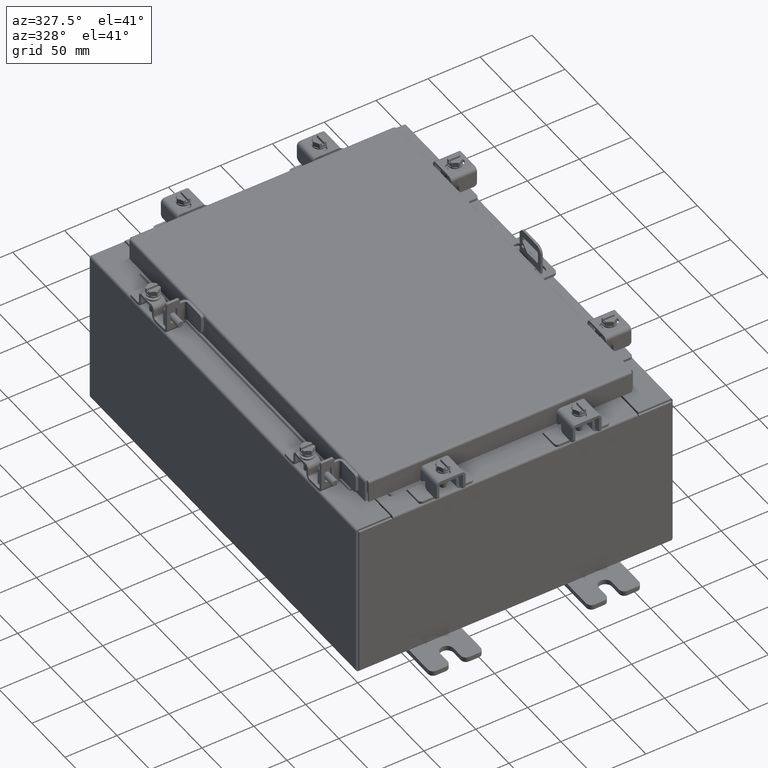
[diagram: clean part render]
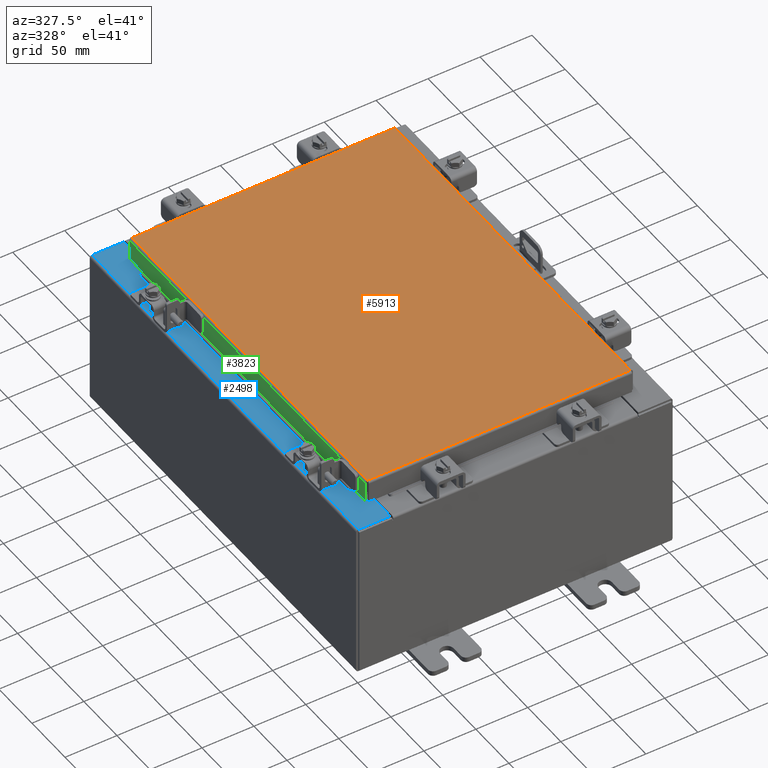
[diagram: same view with three faces highlighted in distinct colors, each labeled with its STEP entity id]
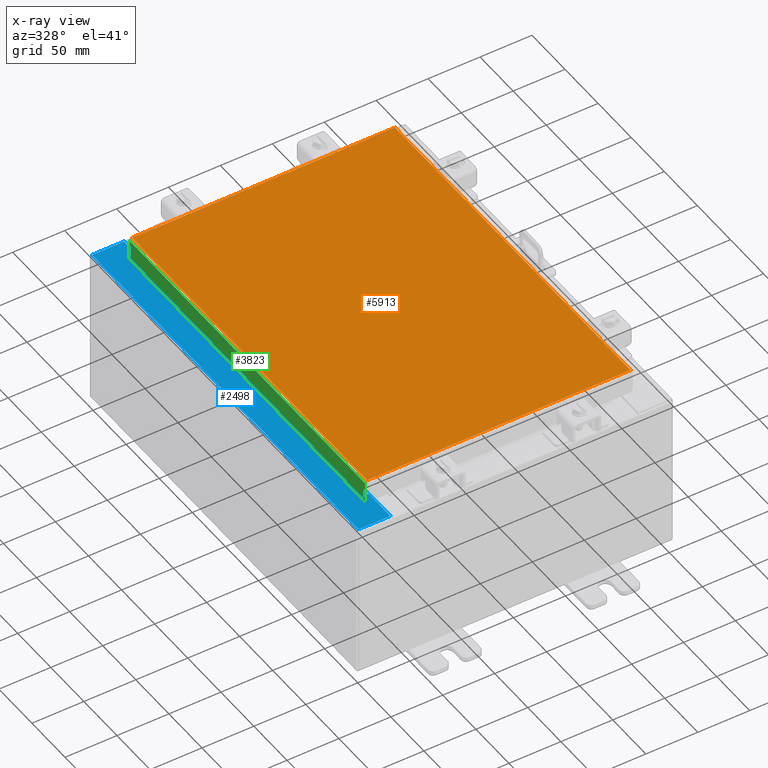
[diagram: x-ray of the same camera — body ghosted, the three highlighted faces saturated]
A machine part, auxiliary view with three faces highlighted in distinct colors.
The next image is the same camera in x-ray (body ghosted, the three faces saturated) — at least one of them is partly hidden behind the body in this view.
Their STEP definitions:

[orange] entity #5913 — the highlighted planar face has unit normal (0, 0, -1).
#114 = AXIS2_PLACEMENT_3D ( 'NONE', #19841, #19724, #19656 ) ;
#808 = ORIENTED_EDGE ( 'NONE', *, *, #8279, .T. ) ;
#845 = DIRECTION ( 'NONE',  ( 1.000000000000000000, -0.0000000000000000000, -0.0000000000000000000 ) ) ;
#2327 = DIRECTION ( 'NONE',  ( -1.000000000000000000, -0.0000000000000000000, -0.0000000000000000000 ) ) ;
#2502 = CARTESIAN_POINT ( 'NONE',  ( -4.990300000000000400, -7.006300000000000400, 0.0000000000000000000 ) ) ;
#2693 = CARTESIAN_POINT ( 'NONE',  ( 4.990299999999998600, 7.006300000000000400, 0.0000000000000000000 ) ) ;
#4467 = VERTEX_POINT ( 'NONE', #15482 ) ;
#4681 = DIRECTION ( 'NONE',  ( 0.0000000000000000000, -1.000000000000000000, 0.0000000000000000000 ) ) ;
#4821 = CARTESIAN_POINT ( 'NONE',  ( -4.990300000000000400, 7.006300000000000400, 0.0000000000000000000 ) ) ;
#5913 = ADVANCED_FACE ( 'NONE', ( #9656 ), #19767, .F. ) ;
#6082 = LINE ( 'NONE', #6095, #9335 ) ;
#6095 = CARTESIAN_POINT ( 'NONE',  ( 4.990299999999998600, -7.006300000000000400, 0.0000000000000000000 ) ) ;
#7862 = ORIENTED_EDGE ( 'NONE', *, *, #18739, .T. ) ;
#8190 = LINE ( 'NONE', #4821, #11910 ) ;
#8279 = EDGE_CURVE ( 'NONE', #12282, #13934, #10445, .T. ) ;
#9314 = DIRECTION ( 'NONE',  ( 0.0000000000000000000, 1.000000000000000000, 0.0000000000000000000 ) ) ;
#9335 = VECTOR ( 'NONE', #9314, 39.37007874015748100 ) ;
#9656 = FACE_OUTER_BOUND ( 'NONE', #20089, .T. ) ;
#9837 = CARTESIAN_POINT ( 'NONE',  ( -4.990300000000000400, 7.006300000000000400, 0.0000000000000000000 ) ) ;
#10445 = LINE ( 'NONE', #2693, #18421 ) ;
#11318 = VERTEX_POINT ( 'NONE', #12871 ) ;
#11910 = VECTOR ( 'NONE', #4681, 39.37007874015748100 ) ;
#12282 = VERTEX_POINT ( 'NONE', #15767 ) ;
#12843 = EDGE_CURVE ( 'NONE', #13934, #11318, #8190, .T. ) ;
#12871 = CARTESIAN_POINT ( 'NONE',  ( -4.990300000000000400, -7.006300000000000400, 0.0000000000000000000 ) ) ;
#13582 = ORIENTED_EDGE ( 'NONE', *, *, #12843, .T. ) ;
#13934 = VERTEX_POINT ( 'NONE', #9837 ) ;
#15482 = CARTESIAN_POINT ( 'NONE',  ( 4.990299999999998600, -7.006300000000000400, 0.0000000000000000000 ) ) ;
#15767 = CARTESIAN_POINT ( 'NONE',  ( 4.990299999999998600, 7.006300000000000400, 0.0000000000000000000 ) ) ;
#15973 = VECTOR ( 'NONE', #845, 39.37007874015748100 ) ;
#16463 = EDGE_CURVE ( 'NONE', #11318, #4467, #20252, .T. ) ;
#18421 = VECTOR ( 'NONE', #2327, 39.37007874015748100 ) ;
#18739 = EDGE_CURVE ( 'NONE', #4467, #12282, #6082, .T. ) ;
#19137 = ORIENTED_EDGE ( 'NONE', *, *, #16463, .T. ) ;
#19656 = DIRECTION ( 'NONE',  ( -1.000000000000000000, 0.0000000000000000000, -0.0000000000000000000 ) ) ;
#19724 = DIRECTION ( 'NONE',  ( 0.0000000000000000000, 0.0000000000000000000, -1.000000000000000000 ) ) ;
#19767 = PLANE ( 'NONE',  #114 ) ;
#19841 = CARTESIAN_POINT ( 'NONE',  ( 0.0000000000000000000, 0.0000000000000000000, 0.0000000000000000000 ) ) ;
#20089 = EDGE_LOOP ( 'NONE', ( #19137, #7862, #808, #13582 ) ) ;
#20252 = LINE ( 'NONE', #2502, #15973 ) ;

[blue] entity #2498 — the highlighted planar face has unit normal (0, 0, -1).
#36 = AXIS2_PLACEMENT_3D ( 'NONE', #936, #12223, #2599 ) ;
#275 = VECTOR ( 'NONE', #15999, 39.37007874015748100 ) ;
#382 = DIRECTION ( 'NONE',  ( 1.000000000000000000, 0.0000000000000000000, 0.0000000000000000000 ) ) ;
#465 = CARTESIAN_POINT ( 'NONE',  ( -5.912300000000023200, 7.925299999999998200, 5.925299999999999100 ) ) ;
#470 = ORIENTED_EDGE ( 'NONE', *, *, #18997, .T. ) ;
#474 = CARTESIAN_POINT ( 'NONE',  ( -4.750050000000023000, 6.593749999999999100, 5.925300000000008000 ) ) ;
#843 = VERTEX_POINT ( 'NONE', #2946 ) ;
#936 = CARTESIAN_POINT ( 'NONE',  ( -4.750050000000023000, -6.612424999999998200, 5.925300000000008000 ) ) ;
#952 = VERTEX_POINT ( 'NONE', #4070 ) ;
#1717 = CARTESIAN_POINT ( 'NONE',  ( -4.252457061925311200E-014, 7.925299999999998200, 5.925300000000041800 ) ) ;
#1950 = LINE ( 'NONE', #2980, #13783 ) ;
#2162 = FACE_OUTER_BOUND ( 'NONE', #10841, .T. ) ;
#2306 = CARTESIAN_POINT ( 'NONE',  ( -4.750050000000023000, -6.631099999999999100, 5.925300000000008000 ) ) ;
#2498 = ADVANCED_FACE ( 'NONE', ( #2162 ), #16123, .F. ) ;
#2599 = DIRECTION ( 'NONE',  ( 1.000000000000000000, 0.0000000000000000000, 0.0000000000000000000 ) ) ;
#2946 = CARTESIAN_POINT ( 'NONE',  ( -4.699700000000022200, -7.925300000000000000, 5.925300000000008000 ) ) ;
#2980 = CARTESIAN_POINT ( 'NONE',  ( -4.252457061925311200E-014, -7.925300000000000000, 5.925300000000041800 ) ) ;
#3041 = ORIENTED_EDGE ( 'NONE', *, *, #13261, .F. ) ;
#3121 = AXIS2_PLACEMENT_3D ( 'NONE', #20849, #20773, #20624 ) ;
#3848 = ORIENTED_EDGE ( 'NONE', *, *, #13019, .F. ) ;
#4070 = CARTESIAN_POINT ( 'NONE',  ( -4.750050000000023000, 6.593749999999999100, 5.925300000000008000 ) ) ;
#4317 = DIRECTION ( 'NONE',  ( -4.822655666717293700E-031, 1.000000000000000000, -3.439885693800320600E-045 ) ) ;
#4638 = LINE ( 'NONE', #18342, #275 ) ;
#4943 = VECTOR ( 'NONE', #4317, 39.37007874015748100 ) ;
#5014 = CIRCLE ( 'NONE', #36, 0.01867500000000003900 ) ;
#5307 = CARTESIAN_POINT ( 'NONE',  ( -4.712700000000023000, 6.593749999999999100, 5.925300000000008000 ) ) ;
#5378 = DIRECTION ( 'NONE',  ( -0.0000000000000000000, -1.000000000000000000, -0.0000000000000000000 ) ) ;
#5465 = LINE ( 'NONE', #17053, #4943 ) ;
#5725 = CARTESIAN_POINT ( 'NONE',  ( -5.912300000000022300, 7.925299999999998200, 5.925299999999999100 ) ) ;
#6287 = CARTESIAN_POINT ( 'NONE',  ( -4.712700000000023000, -6.593749999999999100, 5.925300000000008000 ) ) ;
#6404 = CARTESIAN_POINT ( 'NONE',  ( -4.712700000000023000, 6.593749999999999100, 5.925300000000008000 ) ) ;
#6463 = CARTESIAN_POINT ( 'NONE',  ( -4.750050000000023000, 6.631099999999998200, 5.925300000000008000 ) ) ;
#6590 = LINE ( 'NONE', #5725, #13547 ) ;
#6858 = ORIENTED_EDGE ( 'NONE', *, *, #19564, .T. ) ;
#6994 = CARTESIAN_POINT ( 'NONE',  ( -5.912300000000023200, -7.925300000000000000, 5.925299999999999100 ) ) ;
#7363 = DIRECTION ( 'NONE',  ( 6.893992640440775600E-017, 1.000000000000000000, 4.917321139196952400E-031 ) ) ;
#7788 = VERTEX_POINT ( 'NONE', #12644 ) ;
#7939 = ORIENTED_EDGE ( 'NONE', *, *, #11954, .F. ) ;
#8131 = VERTEX_POINT ( 'NONE', #6287 ) ;
#8267 = DIRECTION ( 'NONE',  ( -1.000000000000000000, -6.146651423996189400E-032, -7.132762385546378400E-015 ) ) ;
#8366 = VERTEX_POINT ( 'NONE', #465 ) ;
#8541 = LINE ( 'NONE', #17942, #11743 ) ;
#8782 = ORIENTED_EDGE ( 'NONE', *, *, #16188, .F. ) ;
#9561 = LINE ( 'NONE', #14263, #18018 ) ;
#9582 = LINE ( 'NONE', #1717, #17514 ) ;
#9671 = VECTOR ( 'NONE', #5378, 39.37007874015748100 ) ;
#9731 = VECTOR ( 'NONE', #382, 39.37007874015748100 ) ;
#9741 = ORIENTED_EDGE ( 'NONE', *, *, #19537, .T. ) ;
#10036 = DIRECTION ( 'NONE',  ( 1.000000000000000000, -2.170286390199978800E-014, 0.0000000000000000000 ) ) ;
#10143 = VERTEX_POINT ( 'NONE', #14266 ) ;
#10246 = VERTEX_POINT ( 'NONE', #13058 ) ;
#10841 = EDGE_LOOP ( 'NONE', ( #7939, #11457, #470, #17165, #9741, #6858, #8782, #14085, #3848, #3041, #12160, #13748 ) ) ;
#10952 = CARTESIAN_POINT ( 'NONE',  ( -4.750050000000023000, -6.593749999999999100, 5.925300000000008000 ) ) ;
#11182 = EDGE_CURVE ( 'NONE', #19280, #952, #16689, .T. ) ;
#11457 = ORIENTED_EDGE ( 'NONE', *, *, #11583, .T. ) ;
#11558 = EDGE_CURVE ( 'NONE', #952, #12858, #14940, .T. ) ;
#11583 = EDGE_CURVE ( 'NONE', #10246, #7788, #5465, .T. ) ;
#11743 = VECTOR ( 'NONE', #10036, 39.37007874015748100 ) ;
#11954 = EDGE_CURVE ( 'NONE', #10246, #19280, #16900, .T. ) ;
#12121 = VERTEX_POINT ( 'NONE', #6994 ) ;
#12160 = ORIENTED_EDGE ( 'NONE', *, *, #11558, .F. ) ;
#12223 = DIRECTION ( 'NONE',  ( -7.132762385546378400E-015, -0.0000000000000000000, 1.000000000000000000 ) ) ;
#12644 = CARTESIAN_POINT ( 'NONE',  ( -4.699700000000022200, 7.925299999999998200, 5.925300000000008000 ) ) ;
#12858 = VERTEX_POINT ( 'NONE', #6404 ) ;
#13019 = EDGE_CURVE ( 'NONE', #8131, #14962, #4638, .T. ) ;
#13058 = CARTESIAN_POINT ( 'NONE',  ( -4.699700000000022200, 6.631100000000000000, 5.925300000000008000 ) ) ;
#13261 = EDGE_CURVE ( 'NONE', #12858, #8131, #18134, .T. ) ;
#13547 = VECTOR ( 'NONE', #7363, 39.37007874015748100 ) ;
#13748 = ORIENTED_EDGE ( 'NONE', *, *, #11182, .F. ) ;
#13783 = VECTOR ( 'NONE', #15719, 39.37007874015748100 ) ;
#14085 = ORIENTED_EDGE ( 'NONE', *, *, #15779, .F. ) ;
#14263 = CARTESIAN_POINT ( 'NONE',  ( -4.699700000000022200, 0.0000000000000000000, 5.925300000000008000 ) ) ;
#14266 = CARTESIAN_POINT ( 'NONE',  ( -4.699700000000022200, -6.631100000000000900, 5.925300000000008000 ) ) ;
#14940 = LINE ( 'NONE', #474, #9731 ) ;
#14962 = VERTEX_POINT ( 'NONE', #10952 ) ;
#15232 = AXIS2_PLACEMENT_3D ( 'NONE', #15816, #15393, #15285 ) ;
#15285 = DIRECTION ( 'NONE',  ( -1.000000000000000000, 0.0000000000000000000, -7.132762385546378400E-015 ) ) ;
#15393 = DIRECTION ( 'NONE',  ( 7.132762385546378400E-015, 0.0000000000000000000, -1.000000000000000000 ) ) ;
#15719 = DIRECTION ( 'NONE',  ( 1.000000000000000000, 8.758115402030108600E-047, 7.132762385546378400E-015 ) ) ;
#15779 = EDGE_CURVE ( 'NONE', #14962, #18562, #5014, .T. ) ;
#15816 = CARTESIAN_POINT ( 'NONE',  ( -4.252457061925311200E-014, 0.0000000000000000000, 5.925300000000041800 ) ) ;
#15851 = DIRECTION ( 'NONE',  ( -4.822655666717293700E-031, 1.000000000000000000, -3.439885693800320600E-045 ) ) ;
#15999 = DIRECTION ( 'NONE',  ( -1.000000000000000000, 0.0000000000000000000, 0.0000000000000000000 ) ) ;
#16123 = PLANE ( 'NONE',  #15232 ) ;
#16188 = EDGE_CURVE ( 'NONE', #18562, #10143, #8541, .T. ) ;
#16400 = VECTOR ( 'NONE', #17822, 39.37007874015748100 ) ;
#16689 = CIRCLE ( 'NONE', #3121, 0.01867500000000003900 ) ;
#16900 = LINE ( 'NONE', #19088, #16400 ) ;
#17053 = CARTESIAN_POINT ( 'NONE',  ( -4.699700000000022200, 0.0000000000000000000, 5.925300000000008000 ) ) ;
#17165 = ORIENTED_EDGE ( 'NONE', *, *, #19284, .F. ) ;
#17514 = VECTOR ( 'NONE', #8267, 39.37007874015748100 ) ;
#17822 = DIRECTION ( 'NONE',  ( -1.000000000000000000, -2.170286390199978800E-014, 0.0000000000000000000 ) ) ;
#17942 = CARTESIAN_POINT ( 'NONE',  ( -4.750050000000023000, -6.631099999999999100, 5.925300000000008000 ) ) ;
#18018 = VECTOR ( 'NONE', #15851, 39.37007874015748100 ) ;
#18134 = LINE ( 'NONE', #5307, #9671 ) ;
#18342 = CARTESIAN_POINT ( 'NONE',  ( -4.712700000000023000, -6.593749999999999100, 5.925300000000008000 ) ) ;
#18562 = VERTEX_POINT ( 'NONE', #2306 ) ;
#18997 = EDGE_CURVE ( 'NONE', #7788, #8366, #9582, .T. ) ;
#19088 = CARTESIAN_POINT ( 'NONE',  ( -4.699700000000022200, 6.631100000000000000, 5.925300000000008000 ) ) ;
#19280 = VERTEX_POINT ( 'NONE', #6463 ) ;
#19284 = EDGE_CURVE ( 'NONE', #12121, #8366, #6590, .T. ) ;
#19537 = EDGE_CURVE ( 'NONE', #12121, #843, #1950, .T. ) ;
#19564 = EDGE_CURVE ( 'NONE', #843, #10143, #9561, .T. ) ;
#20624 = DIRECTION ( 'NONE',  ( 1.000000000000000000, 0.0000000000000000000, 0.0000000000000000000 ) ) ;
#20773 = DIRECTION ( 'NONE',  ( -7.132762385546378400E-015, -0.0000000000000000000, 1.000000000000000000 ) ) ;
#20849 = CARTESIAN_POINT ( 'NONE',  ( -4.750050000000023000, 6.612424999999998200, 5.925300000000008000 ) ) ;

[green] entity #3823 — the highlighted planar face has unit normal (1, 0, -0).
#229 = ORIENTED_EDGE ( 'NONE', *, *, #11309, .F. ) ;
#235 = CARTESIAN_POINT ( 'NONE',  ( -5.078000000000003000, -7.094000000000000300, -0.8499999999999999800 ) ) ;
#696 = AXIS2_PLACEMENT_3D ( 'NONE', #5630, #5584, #5560 ) ;
#851 = VERTEX_POINT ( 'NONE', #3309 ) ;
#1941 = CARTESIAN_POINT ( 'NONE',  ( -5.078000000000003000, -7.005157864376264400, -0.8499999999999999800 ) ) ;
#2375 = VERTEX_POINT ( 'NONE', #18231 ) ;
#2559 = VERTEX_POINT ( 'NONE', #12093 ) ;
#3309 = CARTESIAN_POINT ( 'NONE',  ( -5.078000000000001200, 6.255157864376274200, -0.8499999999999999800 ) ) ;
#3320 = VECTOR ( 'NONE', #10232, 39.37007874015748100 ) ;
#3619 = EDGE_CURVE ( 'NONE', #17079, #15392, #11933, .T. ) ;
#3823 = ADVANCED_FACE ( 'NONE', ( #5182 ), #6137, .F. ) ;
#4575 = ORIENTED_EDGE ( 'NONE', *, *, #13914, .F. ) ;
#5182 = FACE_OUTER_BOUND ( 'NONE', #19985, .T. ) ;
#5467 = VECTOR ( 'NONE', #11544, 39.37007874015748100 ) ;
#5560 = DIRECTION ( 'NONE',  ( -2.818880942772360100E-015, 0.0000000000000000000, -1.000000000000000000 ) ) ;
#5584 = DIRECTION ( 'NONE',  ( 1.000000000000000000, 3.527974528565840600E-031, -2.818880942772360100E-015 ) ) ;
#5630 = CARTESIAN_POINT ( 'NONE',  ( -5.078000000000001200, 0.0000000000000000000, 1.420560956705417000E-014 ) ) ;
#5726 = LINE ( 'NONE', #12799, #14187 ) ;
#6137 = PLANE ( 'NONE',  #696 ) ;
#7014 = EDGE_CURVE ( 'NONE', #17079, #2559, #10137, .T. ) ;
#8215 = VECTOR ( 'NONE', #8775, 39.37007874015748100 ) ;
#8775 = DIRECTION ( 'NONE',  ( -2.818880942772360100E-015, 6.982962677686267500E-015, -1.000000000000000000 ) ) ;
#8803 = CARTESIAN_POINT ( 'NONE',  ( -5.078000000000001200, 7.005157864376269700, 6.337887345301090800E-014 ) ) ;
#9150 = LINE ( 'NONE', #10359, #3320 ) ;
#9644 = DIRECTION ( 'NONE',  ( 4.379057701015054300E-047, 1.000000000000000000, 1.251551449028595500E-016 ) ) ;
#10137 = LINE ( 'NONE', #15203, #10604 ) ;
#10146 = CARTESIAN_POINT ( 'NONE',  ( -5.078000000000003000, -7.094000000000000300, -0.8499999999999999800 ) ) ;
#10232 = DIRECTION ( 'NONE',  ( -0.0000000000000000000, 1.000000000000000000, -0.0000000000000000000 ) ) ;
#10359 = CARTESIAN_POINT ( 'NONE',  ( -5.078000000000001200, -6.255157864376263500, -0.8499999999999999800 ) ) ;
#10477 = CARTESIAN_POINT ( 'NONE',  ( -5.078000000000003000, 7.005157864376276000, -0.8499999999999977600 ) ) ;
#10604 = VECTOR ( 'NONE', #19144, 39.37007874015748100 ) ;
#10869 = VECTOR ( 'NONE', #9644, 39.37007874015748100 ) ;
#11309 = EDGE_CURVE ( 'NONE', #2559, #16217, #5726, .T. ) ;
#11544 = DIRECTION ( 'NONE',  ( 4.379057701015054300E-047, 1.000000000000000000, 1.251551449028595500E-016 ) ) ;
#11933 = LINE ( 'NONE', #8803, #8215 ) ;
#12093 = CARTESIAN_POINT ( 'NONE',  ( -5.078000000000001200, -7.005157864376269700, -0.08770000000000026400 ) ) ;
#12721 = DIRECTION ( 'NONE',  ( -2.818880942772360100E-015, 6.982962677686267500E-015, -1.000000000000000000 ) ) ;
#12799 = CARTESIAN_POINT ( 'NONE',  ( -5.078000000000001200, -7.005157864376269700, -0.07470000000000015500 ) ) ;
#13457 = LINE ( 'NONE', #235, #5467 ) ;
#13827 = ORIENTED_EDGE ( 'NONE', *, *, #18381, .F. ) ;
#13914 = EDGE_CURVE ( 'NONE', #2375, #851, #9150, .T. ) ;
#13941 = EDGE_CURVE ( 'NONE', #851, #15392, #15099, .T. ) ;
#14187 = VECTOR ( 'NONE', #12721, 39.37007874015748100 ) ;
#14191 = CARTESIAN_POINT ( 'NONE',  ( -5.078000000000001200, 7.005157864376269700, -0.08770000000000026400 ) ) ;
#14827 = ORIENTED_EDGE ( 'NONE', *, *, #7014, .F. ) ;
#15099 = LINE ( 'NONE', #10146, #10869 ) ;
#15203 = CARTESIAN_POINT ( 'NONE',  ( -5.078000000000001200, -7.094000000000000300, -0.08770000000000026400 ) ) ;
#15392 = VERTEX_POINT ( 'NONE', #10477 ) ;
#16217 = VERTEX_POINT ( 'NONE', #1941 ) ;
#17079 = VERTEX_POINT ( 'NONE', #14191 ) ;
#17280 = ORIENTED_EDGE ( 'NONE', *, *, #3619, .T. ) ;
#18231 = CARTESIAN_POINT ( 'NONE',  ( -5.078000000000001200, -6.255157864376263500, -0.8499999999999999800 ) ) ;
#18381 = EDGE_CURVE ( 'NONE', #16217, #2375, #13457, .T. ) ;
#19144 = DIRECTION ( 'NONE',  ( 3.527974528565840600E-031, -1.000000000000000000, -9.616438660265784900E-046 ) ) ;
#19850 = ORIENTED_EDGE ( 'NONE', *, *, #13941, .F. ) ;
#19985 = EDGE_LOOP ( 'NONE', ( #14827, #17280, #19850, #4575, #13827, #229 ) ) ;